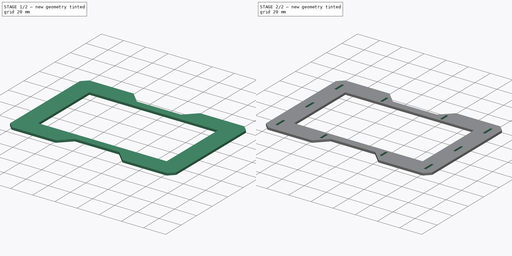
[diagram: build sequence overview — one tinted view per stage of 2, left to right]
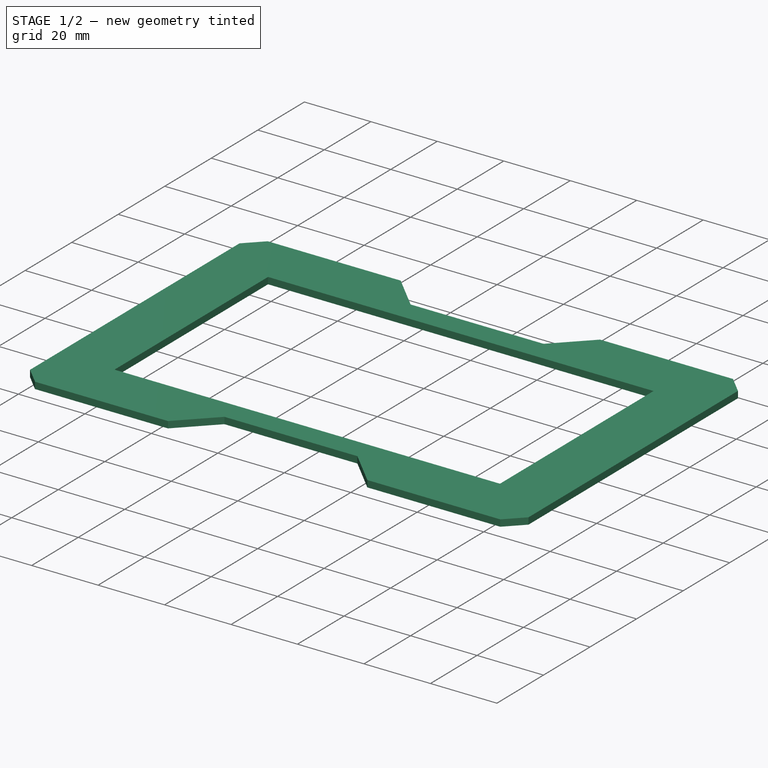
[diagram: stage 1 of 2 — iso view after this stage's code; geometry added in this stage tinted green]
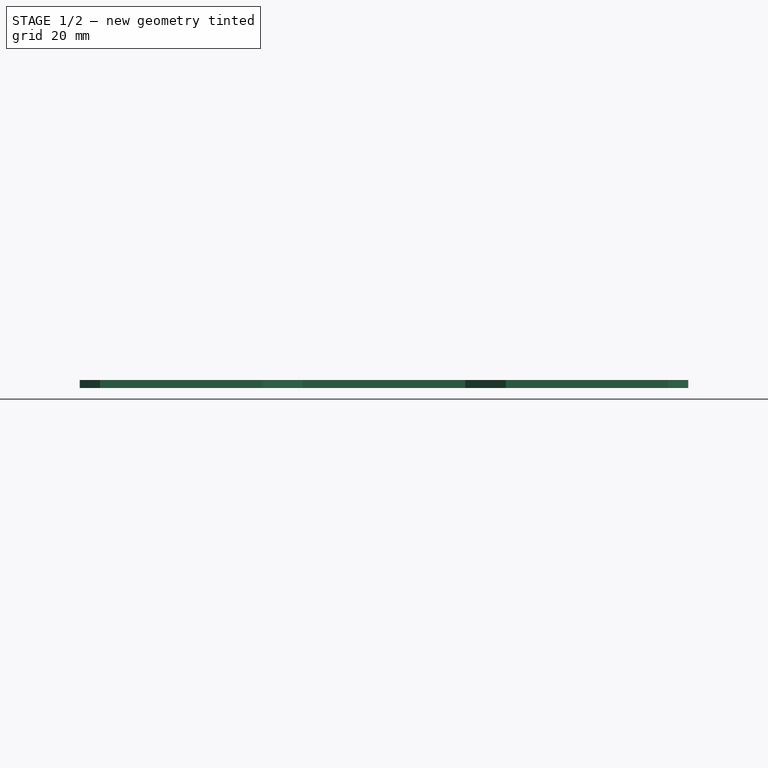
[diagram: stage 1 of 2 — front view after this stage's code; geometry added in this stage tinted green]
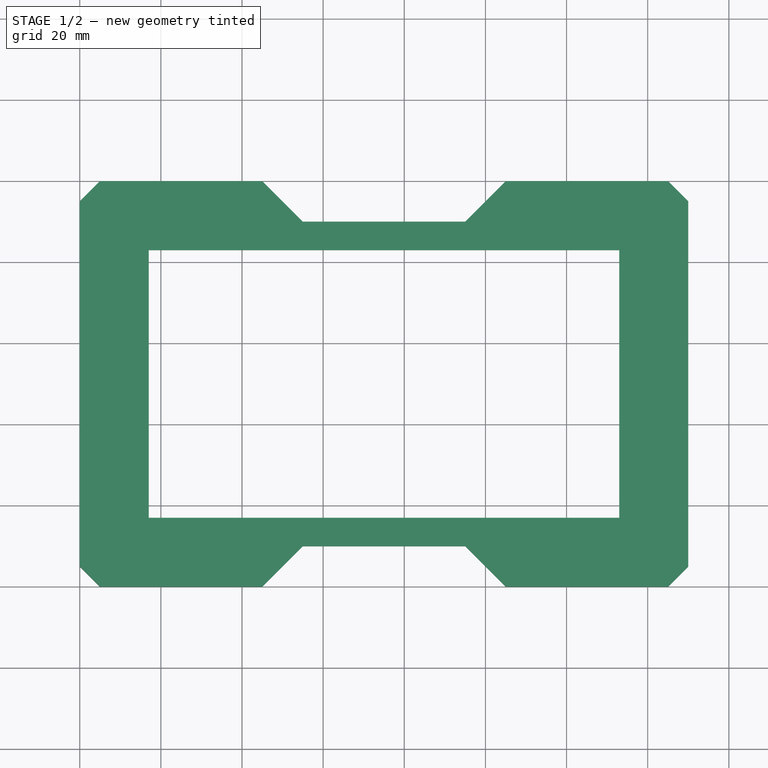
[diagram: stage 1 of 2 — top view after this stage's code; geometry added in this stage tinted green]
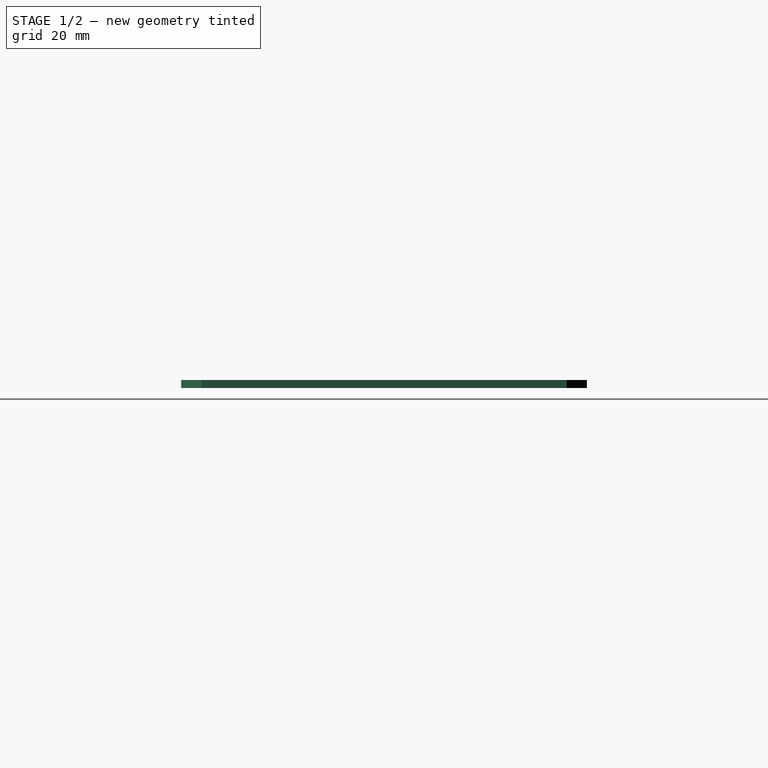
[diagram: stage 1 of 2 — right view after this stage's code; geometry added in this stage tinted green]
FCSTD DOCUMENT  (FreeCAD 0.18R16131 (Git))
Label: toit
License: All rights reserved
LicenseURL: http://en.wikipedia.org/wiki/All_rights_reserved
objects: Sketcher::SketchObject×3, PartDesign::Pocket×2, PartDesign::Pad×1, PartDesign::Chamfer×1, PartDesign::Body×1
note: 11 computed .brp shape members not serialized (recipe doc carries the construction recipe); baked Part::Feature solids carry a one-line shape summary decoded from their .brp

FEATURE [Sketcher::SketchObject] Sketch
  MapMode = 5
  Support = -> [XY_Plane]
  sketch-geometry (16):
    g0: LineSegment StartX=0 StartY=0 StartZ=0 EndX=0 EndY=100 EndZ=0
    g1: LineSegment StartX=0 StartY=100 StartZ=0 EndX=45 EndY=100 EndZ=0
    g2: LineSegment StartX=45 StartY=100 StartZ=0 EndX=55 EndY=90 EndZ=0
    g3: LineSegment StartX=55 StartY=90 StartZ=0 EndX=95 EndY=90 EndZ=0
    g4: LineSegment StartX=95 StartY=90 StartZ=0 EndX=105 EndY=100 EndZ=0
    g5: LineSegment StartX=105 StartY=100 StartZ=0 EndX=150 EndY=100 EndZ=0
    g6: LineSegment StartX=150 StartY=100 StartZ=0 EndX=150 EndY=0 EndZ=0
    g7: LineSegment StartX=150 StartY=0 StartZ=0 EndX=105 EndY=0 EndZ=0
    g8: LineSegment StartX=105 StartY=0 StartZ=0 EndX=95 EndY=10 EndZ=0
    g9: LineSegment StartX=95 StartY=10 StartZ=0 EndX=55 EndY=10 EndZ=0
    g10: LineSegment StartX=55 StartY=10 StartZ=0 EndX=45 EndY=0 EndZ=0
    g11: LineSegment StartX=45 StartY=0 StartZ=0 EndX=0 EndY=0 EndZ=0
    g12: LineSegment StartX=17 StartY=83 StartZ=0 EndX=133 EndY=83 EndZ=0
    g13: LineSegment StartX=133 StartY=83 StartZ=0 EndX=133 EndY=17 EndZ=0
    g14: LineSegment StartX=133 StartY=17 StartZ=0 EndX=17 EndY=17 EndZ=0
    g15: LineSegment StartX=17 StartY=17 StartZ=0 EndX=17 EndY=83 EndZ=0
  constraints (47):
    c: Coincident(g0,g1)
    c: Coincident(g1,g2)
    c: Coincident(g2,g3)
    c: Coincident(g3,g4)
    c: Coincident(g4,g5)
    c: Coincident(g5,g6)
    c: Coincident(g6,g7)
    c: Coincident(g7,g8)
    c: Coincident(g8,g9)
    c: Coincident(g9,g10)
    c: Coincident(g10,g11)
    c: Coincident(g11,g0)
    c: Coincident(g0,g-1)
    c: Horizontal(g5)
    c: Horizontal(g3)
    c: Horizontal(g9)
    c: Horizontal(g7)
    c: Horizontal(g11)
    c: Horizontal(g1)
    c: Vertical(g6)
    c: Vertical(g0)
    c: PointOnObject(g6,g-1)
    c: Equal(g6,g0)
    c: Equal(g9,g3)
    c: DistanceX(g0,g6) = 150
    c: DistanceX(g0,g10) = 45
    c: DistanceX(g0,g9) = 55
    c: Equal(g5,g7)
    c: Equal(g7,g11)
    c: Equal(g11,g1)
    c: DistanceY(g6,g5) = 100
    c: DistanceY(g3,g5) = 10
    c: Equal(g2,g10)
    c: Equal(g10,g4)
    c: Equal(g4,g8)
    c: Coincident(g12,g13)
    c: Coincident(g13,g14)
    c: Coincident(g14,g15)
    c: Coincident(g15,g12)
    c: Horizontal(g12)
    c: Horizontal(g14)
    c: Vertical(g13)
    c: Vertical(g15)
    c: DistanceX(g14,g14) = 116
    c: DistanceY(g13,g13) = 66
    c: DistanceX(g0,g14) = 17
    c: DistanceY(g0,g14) = 17
FEATURE [Sketcher::SketchObject] CopySketch002
  MapMode = 5
  Support = -> [XY_Plane]
  sketch-geometry (16):
    g0: LineSegment StartX=47 StartY=15 StartZ=0 EndX=49 EndY=15 EndZ=0
    g1: LineSegment StartX=49 StartY=15 StartZ=0 EndX=49 EndY=7 EndZ=0
    g2: LineSegment StartX=49 StartY=7 StartZ=0 EndX=47 EndY=7 EndZ=0
    g3: LineSegment StartX=47 StartY=7 StartZ=0 EndX=47 EndY=15 EndZ=0
    g4: LineSegment StartX=101 StartY=15 StartZ=0 EndX=103 EndY=15 EndZ=0
    g5: LineSegment StartX=103 StartY=15 StartZ=0 EndX=103 EndY=7 EndZ=0
    g6: LineSegment StartX=103 StartY=7 StartZ=0 EndX=101 EndY=7 EndZ=0
    g7: LineSegment StartX=101 StartY=7 StartZ=0 EndX=101 EndY=15 EndZ=0
    g8: LineSegment StartX=49 StartY=93 StartZ=0 EndX=47 EndY=93 EndZ=0
    g9: LineSegment StartX=47 StartY=93 StartZ=0 EndX=47 EndY=85 EndZ=0
    g10: LineSegment StartX=47 StartY=85 StartZ=0 EndX=49 EndY=85 EndZ=0
    g11: LineSegment StartX=49 StartY=85 StartZ=0 EndX=49 EndY=93 EndZ=0
    g12: LineSegment StartX=103 StartY=93 StartZ=0 EndX=103 EndY=85 EndZ=0
    g13: LineSegment StartX=103 StartY=85 StartZ=0 EndX=101 EndY=85 EndZ=0
    g14: LineSegment StartX=101 StartY=93 StartZ=0 EndX=103 EndY=93 EndZ=0
    g15: LineSegment StartX=101 StartY=85 StartZ=0 EndX=101 EndY=93 EndZ=0
  constraints (48):
    c: Coincident(g0,g1)
    c: Coincident(g1,g2)
    c: Coincident(g2,g3)
    c: Coincident(g3,g0)
    c: Horizontal(g0)
    c: Horizontal(g2)
    c: Vertical(g1)
    c: Vertical(g3)
    c: DistanceX(g0,g0) = 2
    c: DistanceY(g1,g0) = 8
    c: DistanceX(g-1,g2) = 47
    c: DistanceY(g-1,g2) = 7
    c: Coincident(g4,g5)
    c: Coincident(g5,g6)
    c: Coincident(g6,g7)
    c: Coincident(g7,g4)
    c: Horizontal(g4)
    c: Horizontal(g6)
    c: Vertical(g5)
    c: Vertical(g7)
    c: Equal(g0,g4) = 2
    c: DistanceY(g5,g4) = 8
    c: Coincident(g8,g9)
    c: Coincident(g9,g10)
    c: Coincident(g10,g11)
    c: Coincident(g11,g8)
    c: Horizontal(g8)
    c: Horizontal(g10)
    c: Vertical(g9)
    c: Vertical(g11)
    c: Equal(g0,g8) = 2
    c: DistanceY(g9,g8) = 8
    c: Coincident(g14,g12)
    c: Coincident(g12,g13)
    c: Coincident(g13,g15)
    c: Coincident(g15,g14)
    c: Horizontal(g14)
    c: Horizontal(g13)
    c: Vertical(g12)
    c: Vertical(g15)
    c: Equal(g0,g14) = 2
    c: DistanceY(g12,g14) = 8
    c: DistanceX(g1,g6) = 52
    c: DistanceY(g0,g9) = 70
    c: Horizontal(g13,g9)
    c: Vertical(g9,g2)
    c: Vertical(g6,g13)
    c: Horizontal(g5,g2)
FEATURE [Sketcher::SketchObject] CopySketch001  label="cpy_10x2socket"
  MapMode = 5
  Support = -> [XY_Plane]
  sketch-geometry (24):
    g0: LineSegment StartX=7 StartY=17 StartZ=0 EndX=9 EndY=17 EndZ=0
    g1: LineSegment StartX=9 StartY=17 StartZ=0 EndX=9 EndY=7 EndZ=0
    g2: LineSegment StartX=9 StartY=7 StartZ=0 EndX=7 EndY=7 EndZ=0
    g3: LineSegment StartX=7 StartY=7 StartZ=0 EndX=7 EndY=17 EndZ=0
    g4: LineSegment StartX=9 StartY=55 StartZ=0 EndX=7 EndY=55 EndZ=0
    g5: LineSegment StartX=7 StartY=55 StartZ=0 EndX=7 EndY=45 EndZ=0
    g6: LineSegment StartX=7 StartY=45 StartZ=0 EndX=9 EndY=45 EndZ=0
    g7: LineSegment StartX=9 StartY=45 StartZ=0 EndX=9 EndY=55 EndZ=0
    g8: LineSegment StartX=9 StartY=93 StartZ=0 EndX=7 EndY=93 EndZ=0
    g9: LineSegment StartX=7 StartY=93 StartZ=0 EndX=7 EndY=83 EndZ=0
    g10: LineSegment StartX=7 StartY=83 StartZ=0 EndX=9 EndY=83 EndZ=0
    g11: LineSegment StartX=9 StartY=83 StartZ=0 EndX=9 EndY=93 EndZ=0
    g12: LineSegment StartX=141 StartY=17 StartZ=0 EndX=143 EndY=17 EndZ=0
    g13: LineSegment StartX=143 StartY=17 StartZ=0 EndX=143 EndY=7 EndZ=0
    g14: LineSegment StartX=143 StartY=7 StartZ=0 EndX=141 EndY=7 EndZ=0
    g15: LineSegment StartX=141 StartY=7 StartZ=0 EndX=141 EndY=17 EndZ=0
    g16: LineSegment StartX=143 StartY=55 StartZ=0 EndX=141 EndY=55 EndZ=0
    g17: LineSegment StartX=141 StartY=55 StartZ=0 EndX=141 EndY=45 EndZ=0
    g18: LineSegment StartX=141 StartY=45 StartZ=0 EndX=143 EndY=45 EndZ=0
    g19: LineSegment StartX=143 StartY=45 StartZ=0 EndX=143 EndY=55 EndZ=0
    g20: LineSegment StartX=143 StartY=93 StartZ=0 EndX=141 EndY=93 EndZ=0
    g21: LineSegment StartX=141 StartY=93 StartZ=0 EndX=141 EndY=83 EndZ=0
    g22: LineSegment StartX=141 StartY=83 StartZ=0 EndX=143 EndY=83 EndZ=0
    g23: LineSegment StartX=143 StartY=83 StartZ=0 EndX=143 EndY=93 EndZ=0
  constraints (72):
    c: Coincident(g0,g1)
    c: Coincident(g1,g2)
    c: Coincident(g2,g3)
    c: Coincident(g3,g0)
    c: Horizontal(g0)
    c: Horizontal(g2)
    c: Vertical(g1)
    c: Vertical(g3)
    c: DistanceX(g0,g0) = 2
    c: DistanceY(g1,g1) = 10
    c: Coincident(g4,g5)
    c: Coincident(g5,g6)
    c: Coincident(g6,g7)
    c: Coincident(g7,g4)
    c: Horizontal(g4)
    c: Horizontal(g6)
    c: Vertical(g5)
    c: Vertical(g7)
    c: Equal(g0,g4) = 2
    c: Equal(g1,g5) = 10
    c: Coincident(g8,g9)
    c: Coincident(g9,g10)
    c: Coincident(g10,g11)
    c: Coincident(g11,g8)
    c: Horizontal(g8)
    c: Horizontal(g10)
    c: Vertical(g9)
    c: Vertical(g11)
    c: Equal(g0,g8) = 2
    c: Equal(g1,g9) = 10
    c: Vertical(g10,g6)
    c: DistanceY(g0,g6) = 28
    c: DistanceY(g4,g10) = 28
    c: DistanceY(g-1,g1) = 7
    c: DistanceX(g-1,g1) = 9
    c: Coincident(g12,g13)
    c: Coincident(g13,g14)
    c: Coincident(g14,g15)
    c: Coincident(g15,g12)
    c: Horizontal(g12)
    c: Horizontal(g14)
    c: Vertical(g13)
    c: Vertical(g15)
    c: Equal(g0,g12) = 2
    c: Equal(g1,g13) = 10
    c: Coincident(g16,g17)
    c: Coincident(g17,g18)
    c: Coincident(g18,g19)
    c: Coincident(g19,g16)
    c: Horizontal(g16)
    c: Horizontal(g18)
    c: Vertical(g17)
    c: Vertical(g19)
    c: Equal(g12,g16) = 2
    c: Equal(g13,g17) = 10
    c: Coincident(g20,g21)
    c: Coincident(g21,g22)
    c: Coincident(g22,g23)
    c: Coincident(g23,g20)
    c: Horizontal(g20)
    c: Horizontal(g22)
    c: Vertical(g21)
    c: Vertical(g23)
    c: Equal(g12,g20) = 2
    c: Equal(g13,g21) = 10
    c: Vertical(g22,g18)
    c: DistanceY(g12,g18) = 28
    c: DistanceY(g16,g22) = 28
    c: DistanceX(g-1,g13) = 143
    c: DistanceY(g-1,g13) = 7
    c: Vertical(g2,g5)
    c: Vertical(g18,g13)
FEATURE [PartDesign::Pad] Pad
  Length = 2
  Length2 = 100
  Offset = 2
  Profile = -> Sketch
  Type = 0
FEATURE [PartDesign::Chamfer] Chamfer
  Base = -> Pad [Edge2,Edge17,Edge20,Edge1]
  BaseFeature = -> Pad
  Size = 5
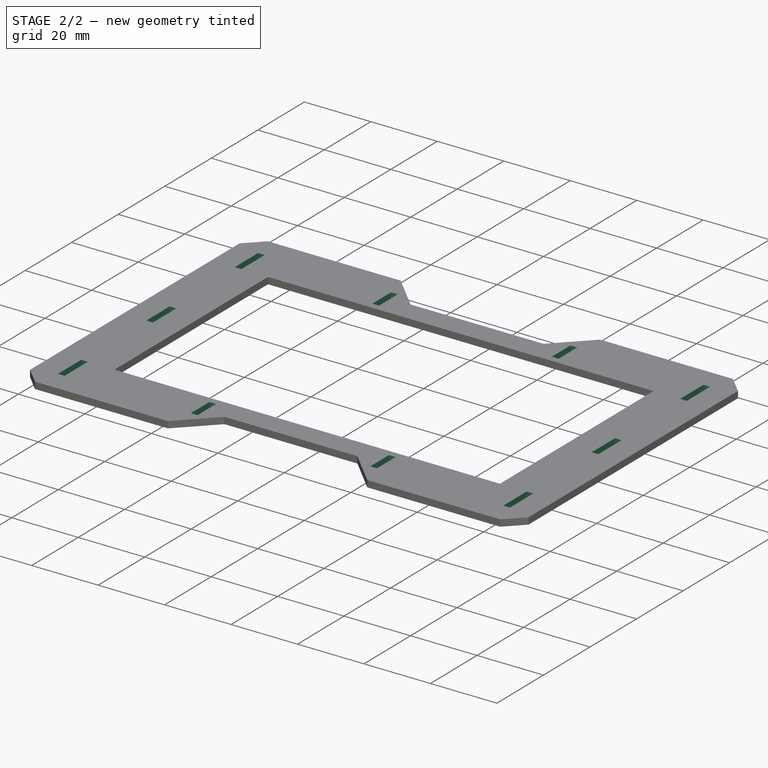
[diagram: stage 2 of 2 — iso view after this stage's code; geometry added in this stage tinted green]
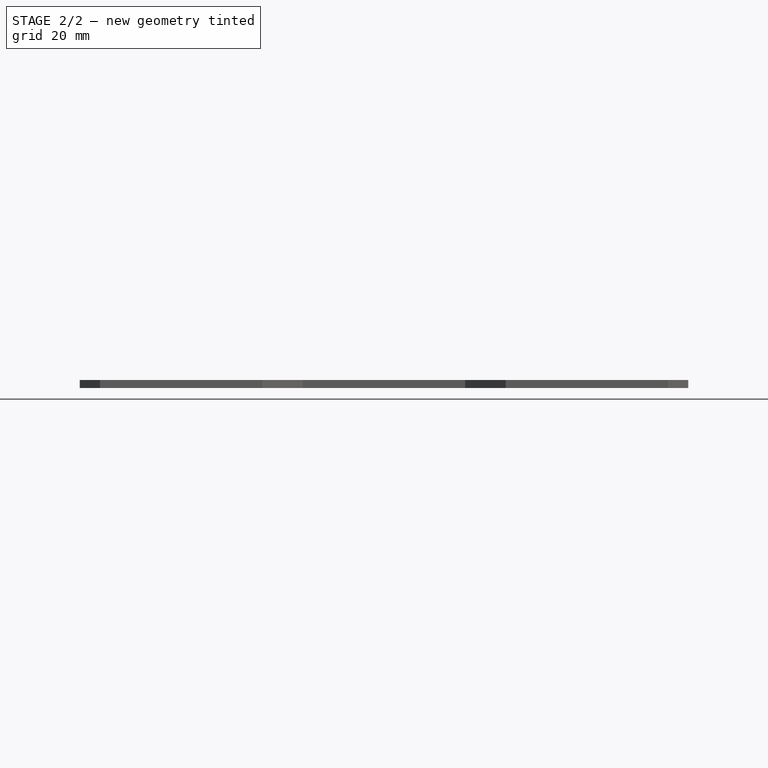
[diagram: stage 2 of 2 — front view after this stage's code; geometry added in this stage tinted green]
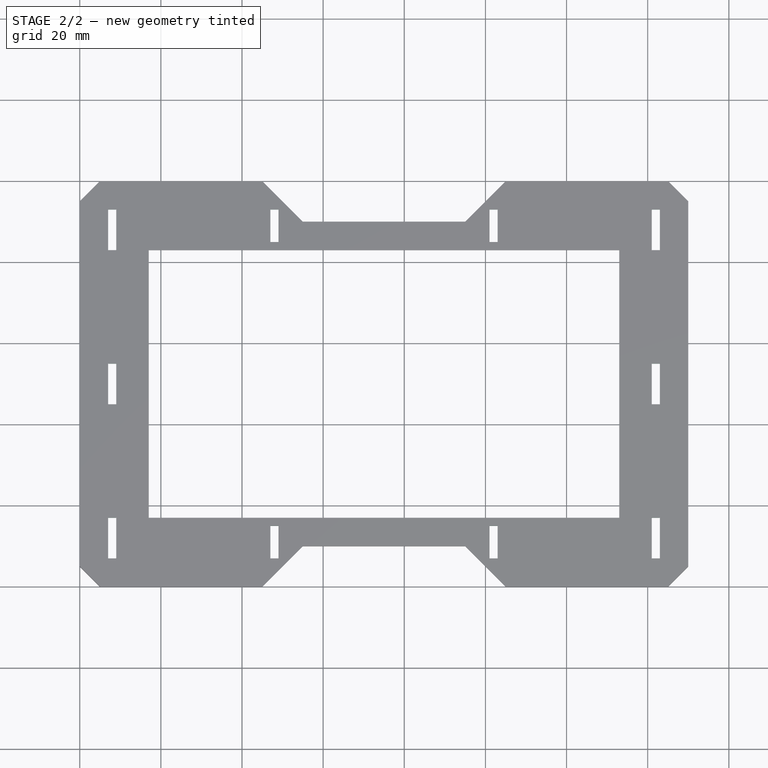
[diagram: stage 2 of 2 — top view after this stage's code; geometry added in this stage tinted green]
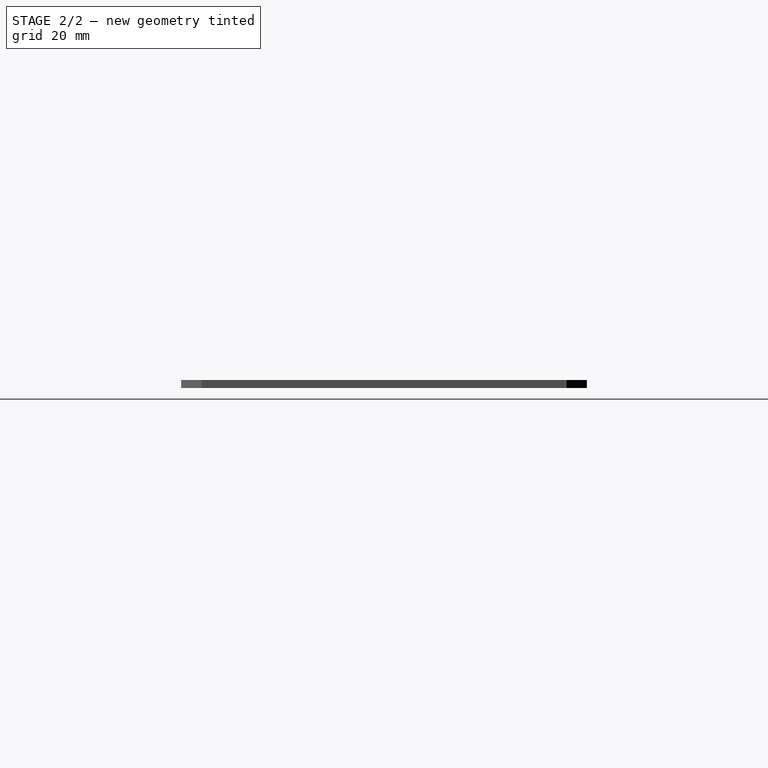
[diagram: stage 2 of 2 — right view after this stage's code; geometry added in this stage tinted green]
FEATURE [PartDesign::Pocket] Pocket
  BaseFeature = -> Chamfer
  Length = 0
  Length2 = 100
  Offset = 12
  Profile = -> CopySketch001
  Reversed = true
  Type = 1
FEATURE [PartDesign::Pocket] Pocket001
  BaseFeature = -> Pocket
  Length = 5
  Length2 = 100
  Profile = -> CopySketch002
  Reversed = true
  Type = 1
FEATURE [PartDesign::Body] Body  label="Base"
  Group = -> [Sketch,Pad,Chamfer,CopySketch001,Pocket,CopySketch002,Pocket001]
  Origin = -> Origin
  Tip = -> Pocket001
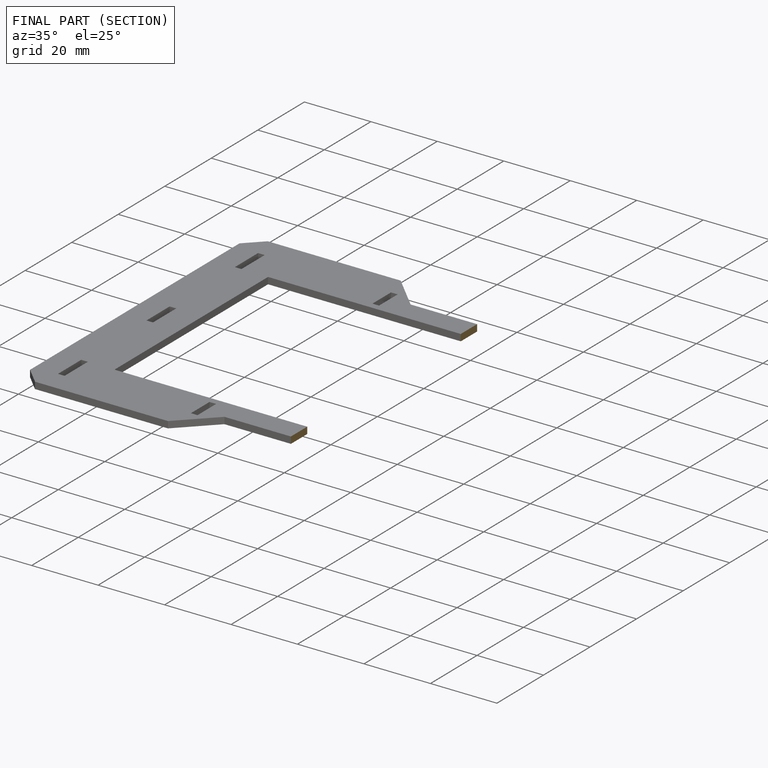
[diagram: finished part — half-section view (interior)]
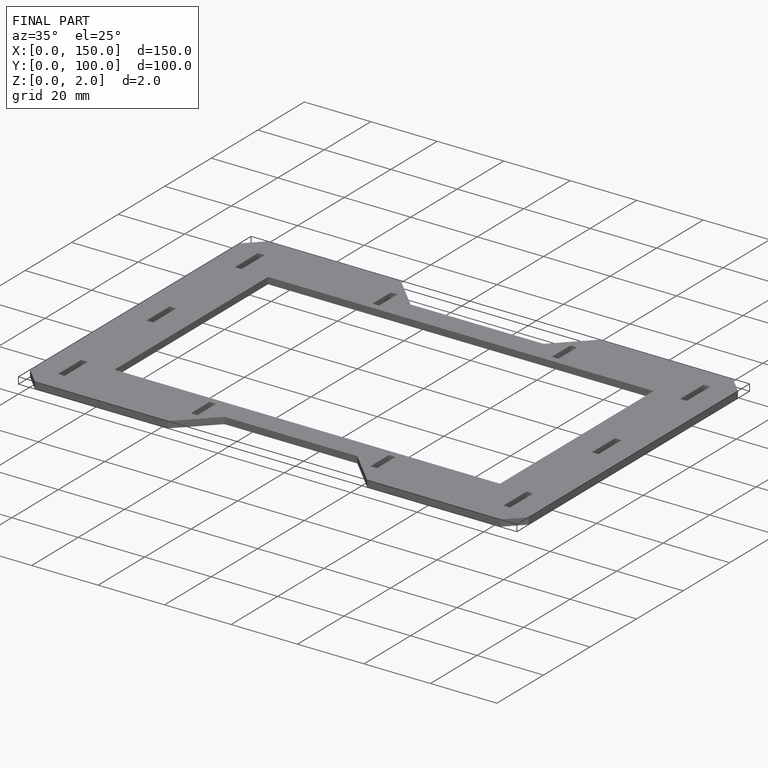
[diagram: finished part — iso view with bounding-box wireframe]
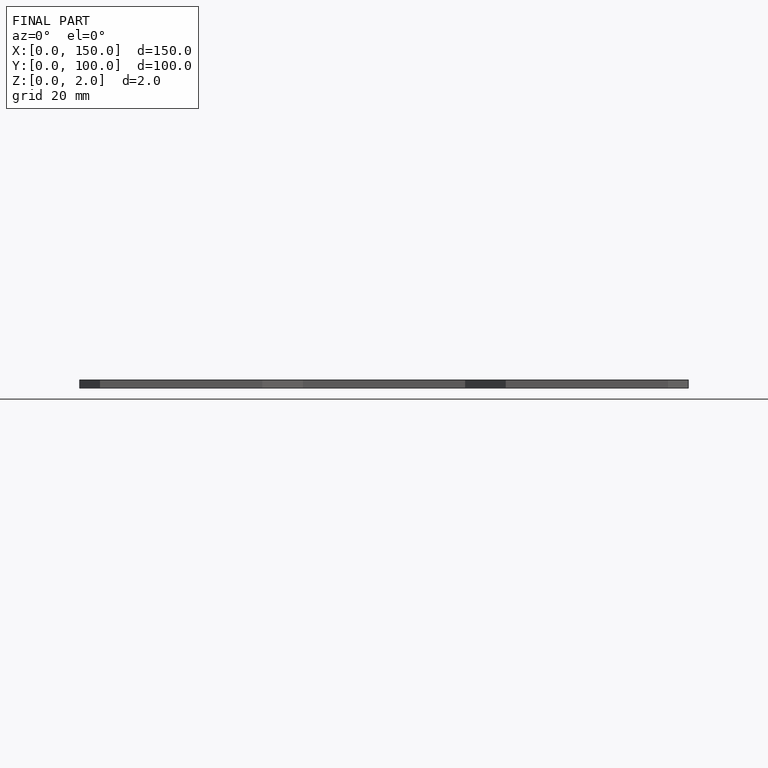
[diagram: finished part — front view with bounding-box wireframe]
